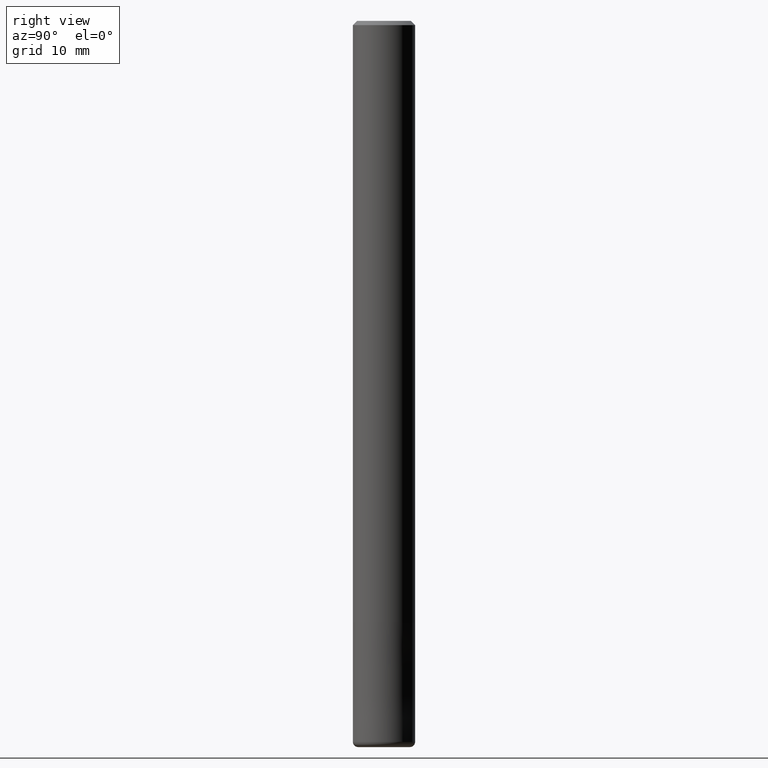
[diagram: clean part render]
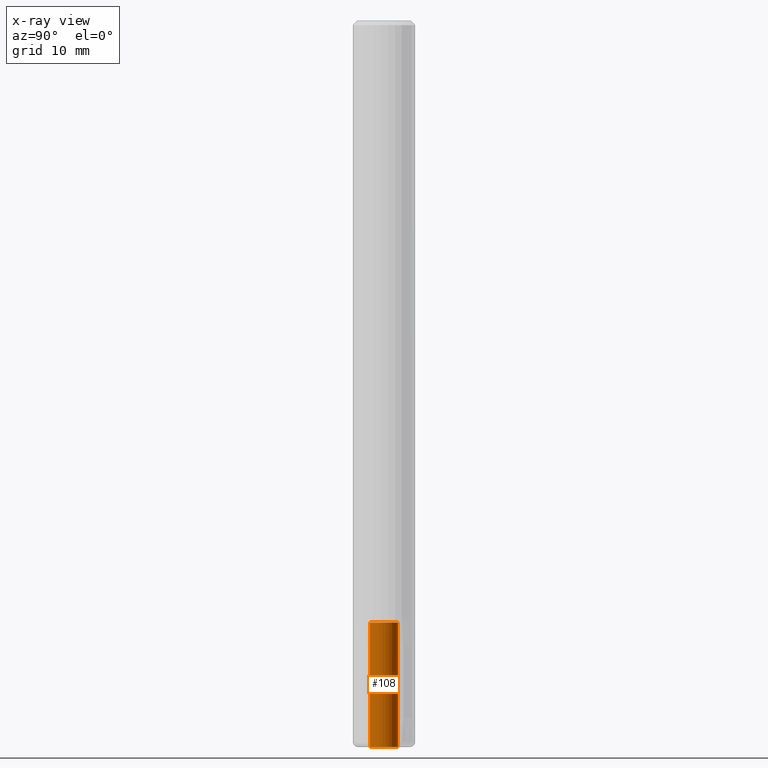
[diagram: x-ray — body ghosted, one internal face saturated and labeled with its STEP entity id]
A machine part, right view, then the same camera in x-ray: the body is ghosted and one INTERNAL B-rep face — a face not visible from any outside direction — is saturated and labeled: STEP entity #108.
In plain terms, the highlighted cylindrical surface (edge-blend (fillet) strip) has radius 1.35 mm, axis along (-0, -0, 1).
Its self-contained STEP definition (entity closure, byte-faithful):
#108=ADVANCED_FACE('',(#270),#271,.F.);
#126=EDGE_CURVE('',#158,#138,#293,.T.);
#132=VERTEX_POINT('',#300);
#138=VERTEX_POINT('',#306);
#140=VERTEX_POINT('',#308);
#158=VERTEX_POINT('',#328);
#162=EDGE_CURVE('',#138,#140,#332,.T.);
#170=EDGE_CURVE('',#132,#158,#342,.T.);
#216=EDGE_CURVE('',#132,#140,#393,.T.);
#270=FACE_OUTER_BOUND('',#445,.T.);
#271=CYLINDRICAL_SURFACE('',#446,1.35);
#293=CIRCLE('',#472,1.35);
#300=CARTESIAN_POINT('',(0.0,1.35,-58.0));
#306=CARTESIAN_POINT('',(1.65321857766021E-016,-1.35,-70.0));
#308=CARTESIAN_POINT('',(1.65321857766021E-016,-1.35,-58.0));
#328=CARTESIAN_POINT('',(0.0,1.35,-70.0));
#332=LINE('',#525,#526);
#342=LINE('',#537,#538);
#393=CIRCLE('',#598,1.35);
#445=EDGE_LOOP('',(#650,#651,#652,#653));
#446=AXIS2_PLACEMENT_3D('',#654,#655,#656);
#472=AXIS2_PLACEMENT_3D('',#689,#690,#691);
#525=CARTESIAN_POINT('',(1.65321857766021E-016,-1.35,-64.0));
#526=VECTOR('',#735,1.0);
#537=CARTESIAN_POINT('',(-1.65321857766021E-016,1.35,-64.0));
#538=VECTOR('',#750,1.0);
#598=AXIS2_PLACEMENT_3D('',#804,#805,#806);
#650=ORIENTED_EDGE('',*,*,#170,.T.);
#651=ORIENTED_EDGE('',*,*,#126,.T.);
#652=ORIENTED_EDGE('',*,*,#162,.T.);
#653=ORIENTED_EDGE('',*,*,#216,.F.);
#654=CARTESIAN_POINT('',(0.0,0.0,-64.0));
#655=DIRECTION('',(-0.0,-0.0,1.0));
#656=DIRECTION('',(0.0,1.0,0.0));
#689=CARTESIAN_POINT('',(0.0,0.0,-70.0));
#690=DIRECTION('',(0.0,0.0,-1.0));
#691=DIRECTION('',(0.0,1.0,0.0));
#735=DIRECTION('',(0.0,-0.0,1.0));
#750=DIRECTION('',(0.0,-0.0,-1.0));
#804=CARTESIAN_POINT('',(0.0,0.0,-58.0));
#805=DIRECTION('',(0.0,0.0,-1.0));
#806=DIRECTION('',(0.0,1.0,0.0));